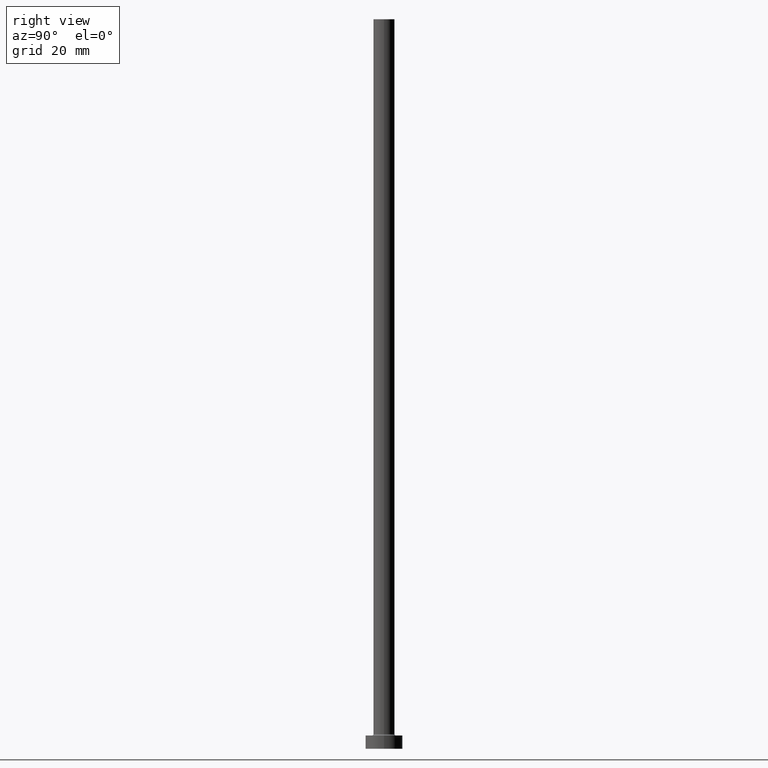
[diagram: clean part render]
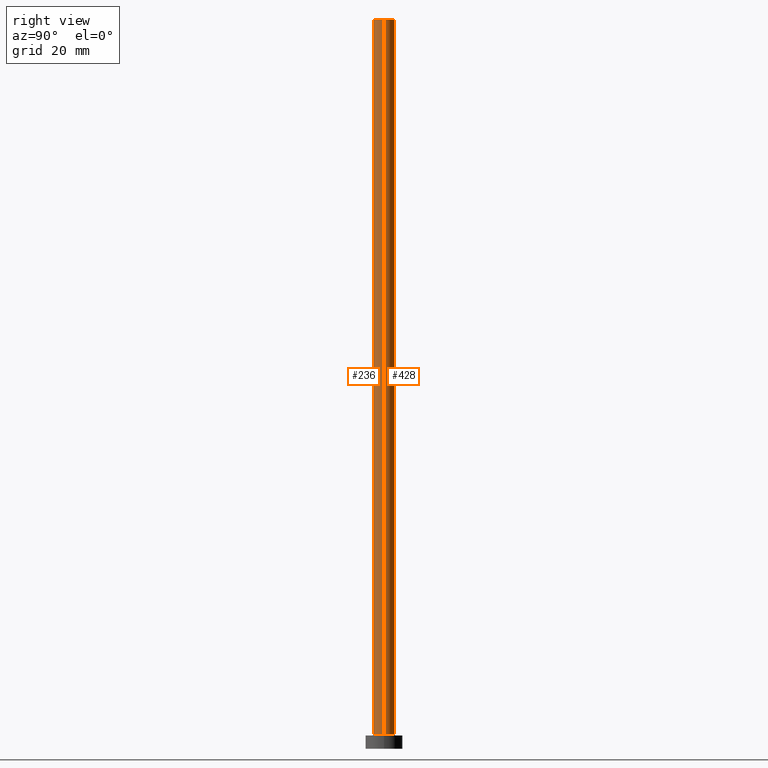
[diagram: same view with one multi-face feature highlighted, each face labeled with its STEP entity id]
A machine part, right view. The highlighted faces form ONE feature: a constant-radius fillet chain: 2 tangent blend faces with common blend radius 4 mm. The faces share edges in the B-rep.
Their STEP definitions:
[1] entity #236 (Cylinder):
#1 = ORIENTED_EDGE ( 'NONE', *, *, #194, .T. ) ;
#22 = EDGE_CURVE ( 'NONE', #380, #446, #255, .T. ) ;
#34 = CARTESIAN_POINT ( 'NONE',  ( -4.000000000000000000, 0.000000000000000000, 275.0000000000000000 ) ) ;
#43 = CARTESIAN_POINT ( 'NONE',  ( 4.000000000000000000, 4.898587196589412829E-16, 275.0000000000000000 ) ) ;
#47 = ORIENTED_EDGE ( 'NONE', *, *, #208, .F. ) ;
#50 = CARTESIAN_POINT ( 'NONE',  ( 4.000000000000000000, 4.898587196589412829E-16, 5.500000000000005329 ) ) ;
#52 = VECTOR ( 'NONE', #401, 1000.000000000000000 ) ;
#63 = LINE ( 'NONE', #34, #328 ) ;
#94 = DIRECTION ( 'NONE',  ( 0.000000000000000000, 0.000000000000000000, 1.000000000000000000 ) ) ;
#107 = AXIS2_PLACEMENT_3D ( 'NONE', #430, #384, #433 ) ;
#126 = CARTESIAN_POINT ( 'NONE',  ( -4.000000000000000000, 0.000000000000000000, 5.500000000000005329 ) ) ;
#141 = CYLINDRICAL_SURFACE ( 'NONE', #107, 4.000000000000000000 ) ;
#163 = CARTESIAN_POINT ( 'NONE',  ( 0.000000000000000000, 0.000000000000000000, 275.0000000000000000 ) ) ;
#169 = FACE_OUTER_BOUND ( 'NONE', #181, .T. ) ;
#181 = EDGE_LOOP ( 'NONE', ( #404, #47, #297, #1 ) ) ;
#194 = EDGE_CURVE ( 'NONE', #399, #446, #286, .T. ) ;
#201 = AXIS2_PLACEMENT_3D ( 'NONE', #163, #94, #375 ) ;
#208 = EDGE_CURVE ( 'NONE', #323, #380, #405, .T. ) ;
#210 = DIRECTION ( 'NONE',  ( -0.000000000000000000, -0.000000000000000000, -1.000000000000000000 ) ) ;
#220 = EDGE_CURVE ( 'NONE', #323, #399, #63, .T. ) ;
#230 = CARTESIAN_POINT ( 'NONE',  ( 0.000000000000000000, 0.000000000000000000, 5.500000000000005329 ) ) ;
#236 = ADVANCED_FACE ( 'NONE', ( #169 ), #141, .T. ) ;
#255 = LINE ( 'NONE', #43, #52 ) ;
#286 = CIRCLE ( 'NONE', #453, 4.000000000000000000 ) ;
#297 = ORIENTED_EDGE ( 'NONE', *, *, #220, .T. ) ;
#323 = VERTEX_POINT ( 'NONE', #339 ) ;
#328 = VECTOR ( 'NONE', #210, 1000.000000000000000 ) ;
#339 = CARTESIAN_POINT ( 'NONE',  ( -4.000000000000000000, 0.000000000000000000, 275.0000000000000000 ) ) ;
#375 = DIRECTION ( 'NONE',  ( 1.000000000000000000, 0.000000000000000000, 0.000000000000000000 ) ) ;
#380 = VERTEX_POINT ( 'NONE', #417 ) ;
#384 = DIRECTION ( 'NONE',  ( -0.000000000000000000, -0.000000000000000000, -1.000000000000000000 ) ) ;
#399 = VERTEX_POINT ( 'NONE', #126 ) ;
#401 = DIRECTION ( 'NONE',  ( -0.000000000000000000, -0.000000000000000000, -1.000000000000000000 ) ) ;
#404 = ORIENTED_EDGE ( 'NONE', *, *, #22, .F. ) ;
#405 = CIRCLE ( 'NONE', #201, 4.000000000000000000 ) ;
#417 = CARTESIAN_POINT ( 'NONE',  ( 4.000000000000000000, 4.898587196589412829E-16, 275.0000000000000000 ) ) ;
#418 = DIRECTION ( 'NONE',  ( 1.000000000000000000, 0.000000000000000000, 0.000000000000000000 ) ) ;
#430 = CARTESIAN_POINT ( 'NONE',  ( 0.000000000000000000, 0.000000000000000000, 275.0000000000000000 ) ) ;
#433 = DIRECTION ( 'NONE',  ( -1.000000000000000000, 0.000000000000000000, 0.000000000000000000 ) ) ;
#446 = VERTEX_POINT ( 'NONE', #50 ) ;
#451 = DIRECTION ( 'NONE',  ( 0.000000000000000000, 0.000000000000000000, 1.000000000000000000 ) ) ;
#453 = AXIS2_PLACEMENT_3D ( 'NONE', #230, #451, #418 ) ;
[2] entity #428 (Cylinder):
#11 = AXIS2_PLACEMENT_3D ( 'NONE', #158, #454, #55 ) ;
#22 = EDGE_CURVE ( 'NONE', #380, #446, #255, .T. ) ;
#34 = CARTESIAN_POINT ( 'NONE',  ( -4.000000000000000000, 0.000000000000000000, 275.0000000000000000 ) ) ;
#37 = CIRCLE ( 'NONE', #11, 4.000000000000000000 ) ;
#43 = CARTESIAN_POINT ( 'NONE',  ( 4.000000000000000000, 4.898587196589412829E-16, 275.0000000000000000 ) ) ;
#50 = CARTESIAN_POINT ( 'NONE',  ( 4.000000000000000000, 4.898587196589412829E-16, 5.500000000000005329 ) ) ;
#52 = VECTOR ( 'NONE', #401, 1000.000000000000000 ) ;
#53 = DIRECTION ( 'NONE',  ( 1.000000000000000000, 0.000000000000000000, 0.000000000000000000 ) ) ;
#55 = DIRECTION ( 'NONE',  ( 1.000000000000000000, 0.000000000000000000, 0.000000000000000000 ) ) ;
#63 = LINE ( 'NONE', #34, #328 ) ;
#78 = ORIENTED_EDGE ( 'NONE', *, *, #22, .T. ) ;
#93 = DIRECTION ( 'NONE',  ( -0.000000000000000000, -0.000000000000000000, -1.000000000000000000 ) ) ;
#126 = CARTESIAN_POINT ( 'NONE',  ( -4.000000000000000000, 0.000000000000000000, 5.500000000000005329 ) ) ;
#132 = EDGE_CURVE ( 'NONE', #380, #323, #37, .T. ) ;
#158 = CARTESIAN_POINT ( 'NONE',  ( 0.000000000000000000, 0.000000000000000000, 275.0000000000000000 ) ) ;
#175 = ORIENTED_EDGE ( 'NONE', *, *, #220, .F. ) ;
#183 = ORIENTED_EDGE ( 'NONE', *, *, #132, .F. ) ;
#184 = AXIS2_PLACEMENT_3D ( 'NONE', #419, #267, #53 ) ;
#195 = CARTESIAN_POINT ( 'NONE',  ( 0.000000000000000000, 0.000000000000000000, 275.0000000000000000 ) ) ;
#198 = FACE_OUTER_BOUND ( 'NONE', #409, .T. ) ;
#210 = DIRECTION ( 'NONE',  ( -0.000000000000000000, -0.000000000000000000, -1.000000000000000000 ) ) ;
#220 = EDGE_CURVE ( 'NONE', #323, #399, #63, .T. ) ;
#231 = DIRECTION ( 'NONE',  ( -1.000000000000000000, 0.000000000000000000, 0.000000000000000000 ) ) ;
#234 = CIRCLE ( 'NONE', #184, 4.000000000000000000 ) ;
#255 = LINE ( 'NONE', #43, #52 ) ;
#267 = DIRECTION ( 'NONE',  ( 0.000000000000000000, 0.000000000000000000, 1.000000000000000000 ) ) ;
#269 = CYLINDRICAL_SURFACE ( 'NONE', #403, 4.000000000000000000 ) ;
#323 = VERTEX_POINT ( 'NONE', #339 ) ;
#328 = VECTOR ( 'NONE', #210, 1000.000000000000000 ) ;
#339 = CARTESIAN_POINT ( 'NONE',  ( -4.000000000000000000, 0.000000000000000000, 275.0000000000000000 ) ) ;
#380 = VERTEX_POINT ( 'NONE', #417 ) ;
#381 = EDGE_CURVE ( 'NONE', #446, #399, #234, .T. ) ;
#392 = ORIENTED_EDGE ( 'NONE', *, *, #381, .T. ) ;
#399 = VERTEX_POINT ( 'NONE', #126 ) ;
#401 = DIRECTION ( 'NONE',  ( -0.000000000000000000, -0.000000000000000000, -1.000000000000000000 ) ) ;
#403 = AXIS2_PLACEMENT_3D ( 'NONE', #195, #93, #231 ) ;
#409 = EDGE_LOOP ( 'NONE', ( #183, #78, #392, #175 ) ) ;
#417 = CARTESIAN_POINT ( 'NONE',  ( 4.000000000000000000, 4.898587196589412829E-16, 275.0000000000000000 ) ) ;
#419 = CARTESIAN_POINT ( 'NONE',  ( 0.000000000000000000, 0.000000000000000000, 5.500000000000005329 ) ) ;
#428 = ADVANCED_FACE ( 'NONE', ( #198 ), #269, .T. ) ;
#446 = VERTEX_POINT ( 'NONE', #50 ) ;
#454 = DIRECTION ( 'NONE',  ( 0.000000000000000000, 0.000000000000000000, 1.000000000000000000 ) ) ;